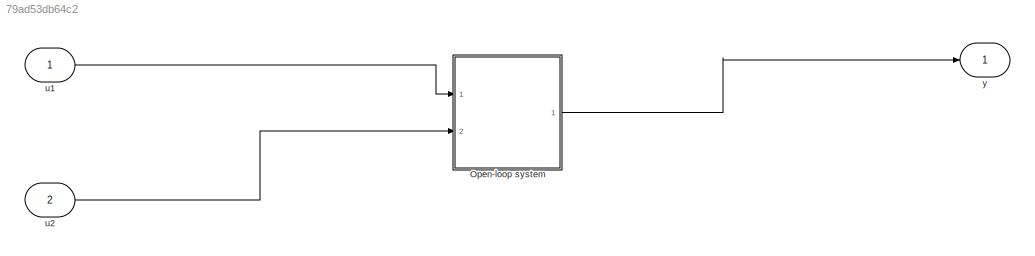
MODEL slx_79ad53db64c2
KIND model
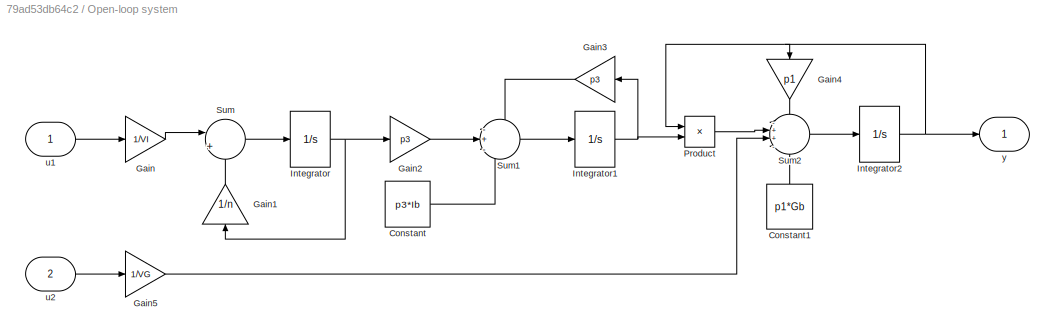
BLOCK [SubSystem] Open-loop system
  Ports = [2, 1]
  RequestExecContextInheritance = off
BLOCK [Gain] Open-loop system/ Gain
  Gain = 1/VI
  OutDataTypeStr = Inherit: Inherit via internal rule
  ParamDataTypeStr = Inherit: Inherit via internal rule
  SaturateOnIntegerOverflow = off
BLOCK [Gain] Open-loop system/ Gain2
  Gain = p3
  OutDataTypeStr = Inherit: Inherit via internal rule
  ParamDataTypeStr = Inherit: Inherit via internal rule
  SaturateOnIntegerOverflow = off
BLOCK [Gain] Open-loop system/ Gain3
  Gain = p3
  OutDataTypeStr = Inherit: Inherit via internal rule
  ParamDataTypeStr = Inherit: Inherit via internal rule
  SaturateOnIntegerOverflow = off
BLOCK [Gain] Open-loop system/ Gain4
  Gain = p1
  OutDataTypeStr = Inherit: Inherit via internal rule
  ParamDataTypeStr = Inherit: Inherit via internal rule
  SaturateOnIntegerOverflow = off
BLOCK [Gain] Open-loop system/ Gain5
  Gain = 1/VG
  OutDataTypeStr = Inherit: Inherit via internal rule
  ParamDataTypeStr = Inherit: Inherit via internal rule
  SaturateOnIntegerOverflow = off
BLOCK [Constant] Open-loop system/Constant
  Value = p3*Ib
BLOCK [Constant] Open-loop system/Constant1
  Value = p1*Gb
BLOCK [Gain] Open-loop system/Gain1
  Gain = 1/n
  OutDataTypeStr = Inherit: Inherit via internal rule
  ParamDataTypeStr = Inherit: Inherit via internal rule
  SaturateOnIntegerOverflow = off
BLOCK [Integrator] Open-loop system/Integrator
  Ports = [1, 1]
BLOCK [Integrator] Open-loop system/Integrator1
  Ports = [1, 1]
BLOCK [Integrator] Open-loop system/Integrator2
  Ports = [1, 1]
BLOCK [Product] Open-loop system/Product
  InputSameDT = off
  OutDataTypeStr = Inherit: Inherit via internal rule
  Ports = [2, 1]
  RndMeth = Floor
  SaturateOnIntegerOverflow = off
BLOCK [Sum] Open-loop system/Sum
  IconShape = round
  InputSameDT = off
  Inputs = |+-
  OutDataTypeStr = Inherit: Inherit via internal rule
  Ports = [2, 1]
  SaturateOnIntegerOverflow = off
BLOCK [Sum] Open-loop system/Sum1
  IconShape = round
  InputSameDT = off
  Inputs = -+-
  OutDataTypeStr = Inherit: Inherit via internal rule
  Ports = [3, 1]
  SaturateOnIntegerOverflow = off
BLOCK [Sum] Open-loop system/Sum2
  IconShape = round
  InputSameDT = off
  Inputs = -++-
  OutDataTypeStr = Inherit: Inherit via internal rule
  Ports = [4, 1]
  SaturateOnIntegerOverflow = off
BLOCK [Inport] Open-loop system/u1
  IconDisplay = Port number
BLOCK [Inport] Open-loop system/u2
  IconDisplay = Port number
  Port = 2
BLOCK [Outport] Open-loop system/y
  IconDisplay = Port number
BLOCK [Inport] u1
  IconDisplay = Port number
BLOCK [Inport] u2
  IconDisplay = Port number
  Port = 2
BLOCK [Outport] y
  IconDisplay = Port number
LINE Open-loop system/ Gain2:1 -> Open-loop system/Sum1:2
LINE Open-loop system/ Gain3:1 -> Open-loop system/Sum1:1
LINE Open-loop system/ Gain4:1 -> Open-loop system/Sum2:1
LINE Open-loop system/ Gain5:1 -> Open-loop system/Sum2:3
LINE Open-loop system/ Gain:1 -> Open-loop system/Sum:1
LINE Open-loop system/Constant1:1 -> Open-loop system/Sum2:4
LINE Open-loop system/Constant:1 -> Open-loop system/Sum1:3
LINE Open-loop system/Gain1:1 -> Open-loop system/Sum:2
NET Open-loop system/Integrator1:1 -> Open-loop system/ Gain3:1, Open-loop system/Product:2
NET Open-loop system/Integrator2:1 -> Open-loop system/ Gain4:1, Open-loop system/Product:1, Open-loop system/y:1
NET Open-loop system/Integrator:1 -> Open-loop system/ Gain2:1, Open-loop system/Gain1:1
LINE Open-loop system/Product:1 -> Open-loop system/Sum2:2
LINE Open-loop system/Sum1:1 -> Open-loop system/Integrator1:1
LINE Open-loop system/Sum2:1 -> Open-loop system/Integrator2:1
LINE Open-loop system/Sum:1 -> Open-loop system/Integrator:1
LINE Open-loop system/u1:1 -> Open-loop system/ Gain:1
LINE Open-loop system/u2:1 -> Open-loop system/ Gain5:1
LINE Open-loop system:1 -> y:1
LINE u1:1 -> Open-loop system:1
LINE u2:1 -> Open-loop system:2
note: NET lines group one-source signal fan-out (src -> all destinations, sorted); 1:1 wires keep LINE
